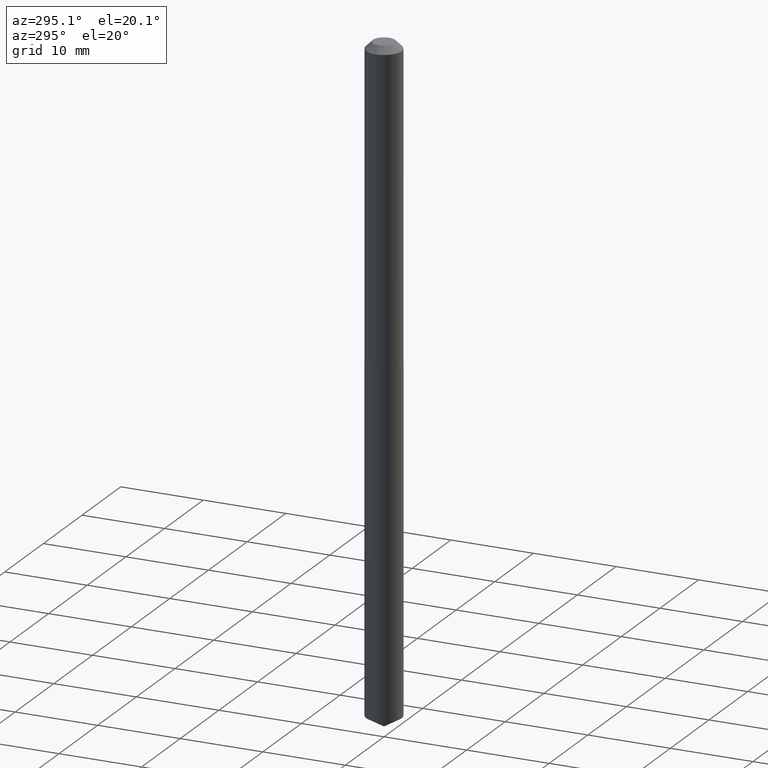
[diagram: clean part render]
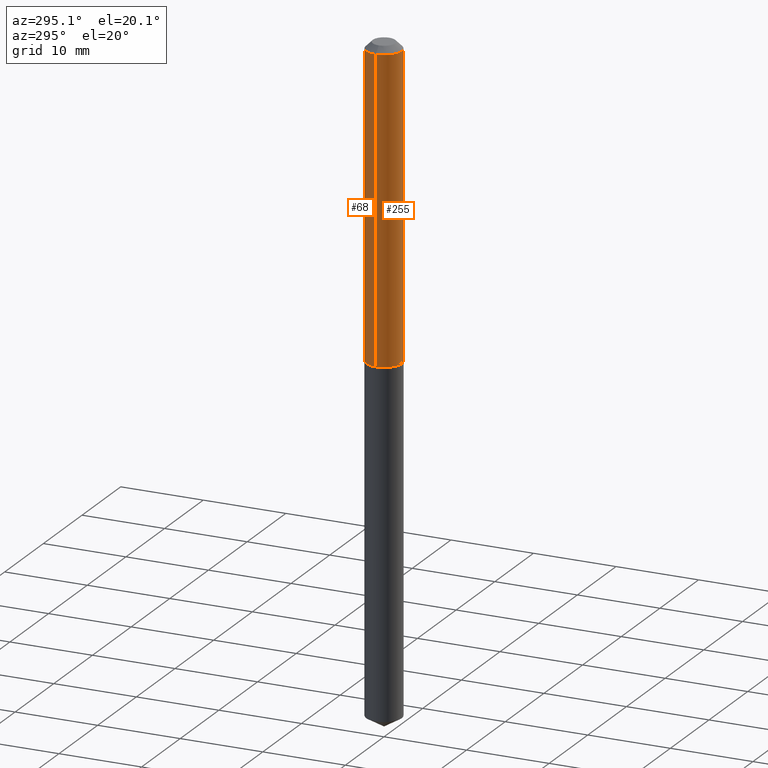
[diagram: same view with one multi-face feature highlighted, each face labeled with its STEP entity id]
A machine part, auxiliary view. The highlighted faces form ONE feature: a constant-radius fillet chain: 2 tangent blend faces with common blend radius 2.1501 mm. The faces share edges in the B-rep.
Their STEP definitions:
[1] entity #68 (Cylinder):
#10 = CYLINDRICAL_SURFACE ( 'NONE', #354, 0.08465000000000011404 ) ;
#28 = EDGE_CURVE ( 'NONE', #232, #60, #148, .T. ) ;
#41 = AXIS2_PLACEMENT_3D ( 'NONE', #369, #329, #59 ) ;
#43 = DIRECTION ( 'NONE',  ( 1.000000000000000000, -6.982962677686266711E-15, 0.000000000000000000 ) ) ;
#46 = VECTOR ( 'NONE', #252, 39.37007874015748143 ) ;
#50 = CARTESIAN_POINT ( 'NONE',  ( -0.08465000000000018343, -4.524020179600813175E-15, -1.468000000000000194 ) ) ;
#57 = LINE ( 'NONE', #171, #46 ) ;
#59 = DIRECTION ( 'NONE',  ( 1.000000000000000000, -6.982962677686266711E-15, 0.000000000000000000 ) ) ;
#60 = VERTEX_POINT ( 'NONE', #98 ) ;
#68 = ADVANCED_FACE ( 'NONE', ( #189 ), #10, .T. ) ;
#71 = EDGE_CURVE ( 'NONE', #211, #232, #277, .T. ) ;
#72 = CARTESIAN_POINT ( 'NONE',  ( 7.642090019328602662E-31, -1.091087918388490267E-16, -0.03125000000000020817 ) ) ;
#73 = DIRECTION ( 'NONE',  ( 1.000000000000000000, -6.982962677686266711E-15, 4.876176775795935232E-29 ) ) ;
#97 = CARTESIAN_POINT ( 'NONE',  ( 0.000000000000000000, 0.000000000000000000, 0.000000000000000000 ) ) ;
#98 = CARTESIAN_POINT ( 'NONE',  ( -0.08465000000000003078, -2.015827272809367540E-15, -0.03125000000000020817 ) ) ;
#114 = CIRCLE ( 'NONE', #41, 0.08465000000000018343 ) ;
#137 = CARTESIAN_POINT ( 'NONE',  ( 0.08465000000000018343, -5.716602396087882778E-15, -1.468000000000000194 ) ) ;
#148 = CIRCLE ( 'NONE', #295, 0.08465000000000003078 ) ;
#157 = DIRECTION ( 'NONE',  ( -2.445468806185136877E-29, 3.491481338843145188E-15, 1.000000000000000000 ) ) ;
#171 = CARTESIAN_POINT ( 'NONE',  ( -0.08465000000000011404, 6.014744258209256177E-16, -4.163878553900783461E-30 ) ) ;
#189 = FACE_OUTER_BOUND ( 'NONE', #264, .T. ) ;
#206 = ORIENTED_EDGE ( 'NONE', *, *, #371, .T. ) ;
#211 = VERTEX_POINT ( 'NONE', #137 ) ;
#232 = VERTEX_POINT ( 'NONE', #382 ) ;
#244 = VERTEX_POINT ( 'NONE', #50 ) ;
#252 = DIRECTION ( 'NONE',  ( -2.445468806185136877E-29, 3.491481338843145188E-15, 1.000000000000000000 ) ) ;
#264 = EDGE_LOOP ( 'NONE', ( #206, #290, #292, #385 ) ) ;
#277 = LINE ( 'NONE', #332, #315 ) ;
#290 = ORIENTED_EDGE ( 'NONE', *, *, #362, .T. ) ;
#292 = ORIENTED_EDGE ( 'NONE', *, *, #28, .F. ) ;
#295 = AXIS2_PLACEMENT_3D ( 'NONE', #72, #330, #43 ) ;
#300 = DIRECTION ( 'NONE',  ( -2.445468806185136597E-29, 3.491481338843145583E-15, 1.000000000000000000 ) ) ;
#315 = VECTOR ( 'NONE', #157, 39.37007874015748143 ) ;
#329 = DIRECTION ( 'NONE',  ( -2.445468806185136597E-29, 3.491481338843145583E-15, 1.000000000000000000 ) ) ;
#330 = DIRECTION ( 'NONE',  ( -2.445468806185136597E-29, 3.491481338843145583E-15, 1.000000000000000000 ) ) ;
#332 = CARTESIAN_POINT ( 'NONE',  ( 0.08465000000000011404, -5.911077906661432951E-16, 4.127683640711264817E-30 ) ) ;
#354 = AXIS2_PLACEMENT_3D ( 'NONE', #97, #300, #73 ) ;
#362 = EDGE_CURVE ( 'NONE', #244, #60, #57, .T. ) ;
#369 = CARTESIAN_POINT ( 'NONE',  ( 3.589948207479781295E-29, -5.125494605421738793E-15, -1.468000000000000194 ) ) ;
#371 = EDGE_CURVE ( 'NONE', #211, #244, #114, .T. ) ;
#382 = CARTESIAN_POINT ( 'NONE',  ( 0.08465000000000003078, -7.002165825049917055E-16, -0.03125000000000020817 ) ) ;
#385 = ORIENTED_EDGE ( 'NONE', *, *, #71, .F. ) ;
[2] entity #255 (Cylinder):
#14 = DIRECTION ( 'NONE',  ( 1.000000000000000000, -6.982962677686266711E-15, 0.000000000000000000 ) ) ;
#17 = DIRECTION ( 'NONE',  ( -2.445468806185136597E-29, 3.491481338843145583E-15, 1.000000000000000000 ) ) ;
#46 = VECTOR ( 'NONE', #252, 39.37007874015748143 ) ;
#48 = EDGE_CURVE ( 'NONE', #60, #232, #103, .T. ) ;
#50 = CARTESIAN_POINT ( 'NONE',  ( -0.08465000000000018343, -4.524020179600813175E-15, -1.468000000000000194 ) ) ;
#55 = DIRECTION ( 'NONE',  ( -2.445468806185136597E-29, 3.491481338843145583E-15, 1.000000000000000000 ) ) ;
#57 = LINE ( 'NONE', #171, #46 ) ;
#60 = VERTEX_POINT ( 'NONE', #98 ) ;
#62 = ORIENTED_EDGE ( 'NONE', *, *, #362, .F. ) ;
#71 = EDGE_CURVE ( 'NONE', #211, #232, #277, .T. ) ;
#96 = AXIS2_PLACEMENT_3D ( 'NONE', #221, #184, #14 ) ;
#98 = CARTESIAN_POINT ( 'NONE',  ( -0.08465000000000003078, -2.015827272809367540E-15, -0.03125000000000020817 ) ) ;
#103 = CIRCLE ( 'NONE', #96, 0.08465000000000003078 ) ;
#108 = FACE_OUTER_BOUND ( 'NONE', #272, .T. ) ;
#121 = CIRCLE ( 'NONE', #348, 0.08465000000000018343 ) ;
#122 = ORIENTED_EDGE ( 'NONE', *, *, #48, .F. ) ;
#137 = CARTESIAN_POINT ( 'NONE',  ( 0.08465000000000018343, -5.716602396087882778E-15, -1.468000000000000194 ) ) ;
#147 = ORIENTED_EDGE ( 'NONE', *, *, #71, .T. ) ;
#157 = DIRECTION ( 'NONE',  ( -2.445468806185136877E-29, 3.491481338843145188E-15, 1.000000000000000000 ) ) ;
#171 = CARTESIAN_POINT ( 'NONE',  ( -0.08465000000000011404, 6.014744258209256177E-16, -4.163878553900783461E-30 ) ) ;
#184 = DIRECTION ( 'NONE',  ( -2.445468806185136597E-29, 3.491481338843145583E-15, 1.000000000000000000 ) ) ;
#198 = CARTESIAN_POINT ( 'NONE',  ( 3.589948207479781295E-29, -5.125494605421738793E-15, -1.468000000000000194 ) ) ;
#211 = VERTEX_POINT ( 'NONE', #137 ) ;
#221 = CARTESIAN_POINT ( 'NONE',  ( 7.642090019328602662E-31, -1.091087918388490267E-16, -0.03125000000000020817 ) ) ;
#232 = VERTEX_POINT ( 'NONE', #382 ) ;
#244 = VERTEX_POINT ( 'NONE', #50 ) ;
#252 = DIRECTION ( 'NONE',  ( -2.445468806185136877E-29, 3.491481338843145188E-15, 1.000000000000000000 ) ) ;
#255 = ADVANCED_FACE ( 'NONE', ( #108 ), #284, .T. ) ;
#259 = DIRECTION ( 'NONE',  ( 1.000000000000000000, -6.982962677686266711E-15, 0.000000000000000000 ) ) ;
#269 = ORIENTED_EDGE ( 'NONE', *, *, #336, .T. ) ;
#272 = EDGE_LOOP ( 'NONE', ( #62, #269, #147, #122 ) ) ;
#277 = LINE ( 'NONE', #332, #315 ) ;
#284 = CYLINDRICAL_SURFACE ( 'NONE', #372, 0.08465000000000011404 ) ;
#285 = DIRECTION ( 'NONE',  ( 1.000000000000000000, -6.982962677686266711E-15, 4.876176775795935232E-29 ) ) ;
#315 = VECTOR ( 'NONE', #157, 39.37007874015748143 ) ;
#332 = CARTESIAN_POINT ( 'NONE',  ( 0.08465000000000011404, -5.911077906661432951E-16, 4.127683640711264817E-30 ) ) ;
#336 = EDGE_CURVE ( 'NONE', #244, #211, #121, .T. ) ;
#340 = CARTESIAN_POINT ( 'NONE',  ( 0.000000000000000000, 0.000000000000000000, 0.000000000000000000 ) ) ;
#348 = AXIS2_PLACEMENT_3D ( 'NONE', #198, #55, #259 ) ;
#362 = EDGE_CURVE ( 'NONE', #244, #60, #57, .T. ) ;
#372 = AXIS2_PLACEMENT_3D ( 'NONE', #340, #17, #285 ) ;
#382 = CARTESIAN_POINT ( 'NONE',  ( 0.08465000000000003078, -7.002165825049917055E-16, -0.03125000000000020817 ) ) ;